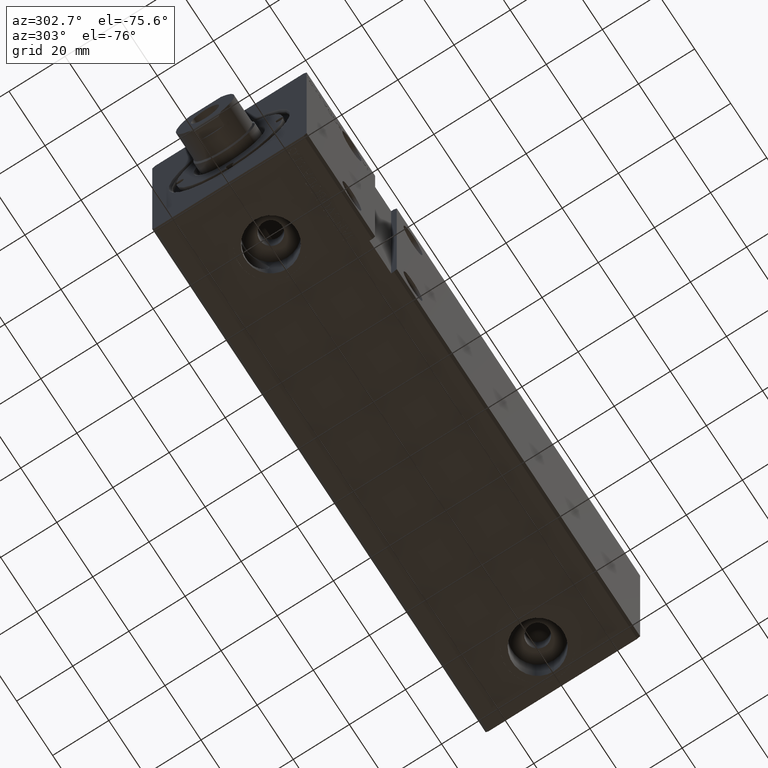
[diagram: clean part render]
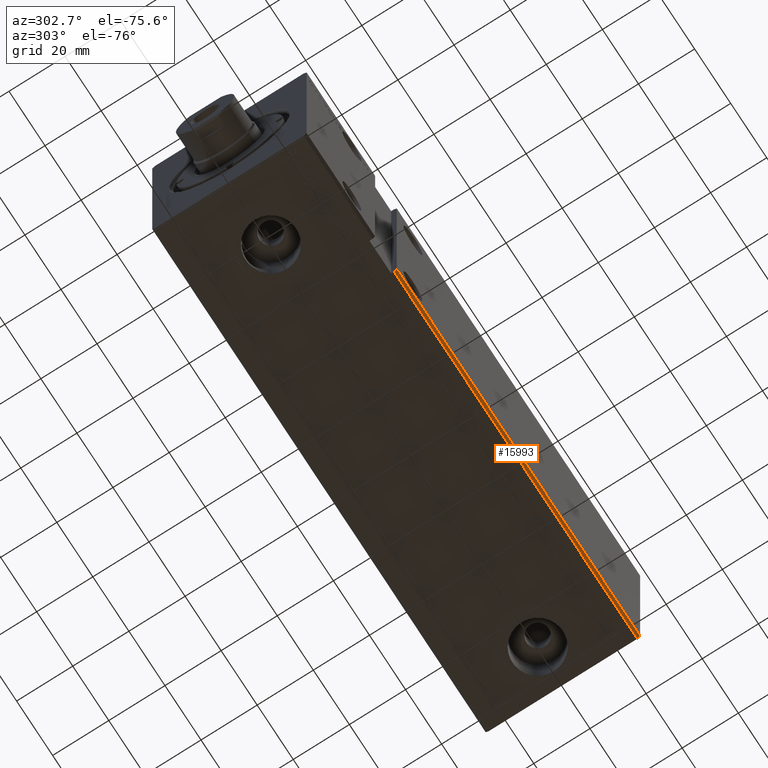
[diagram: same view with one face highlighted and labeled with its STEP entity id]
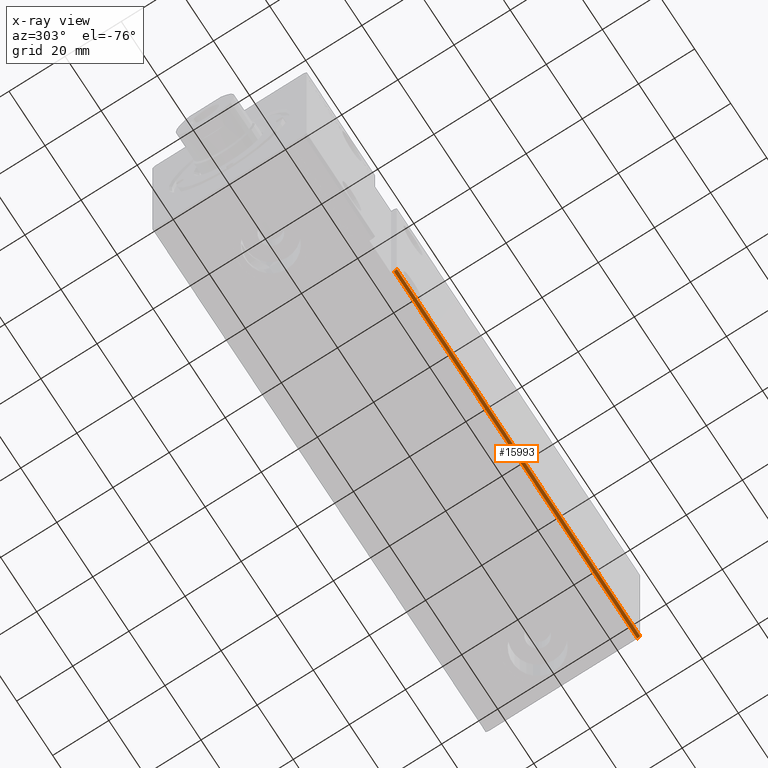
[diagram: x-ray of the same camera — body ghosted, the highlighted face saturated]
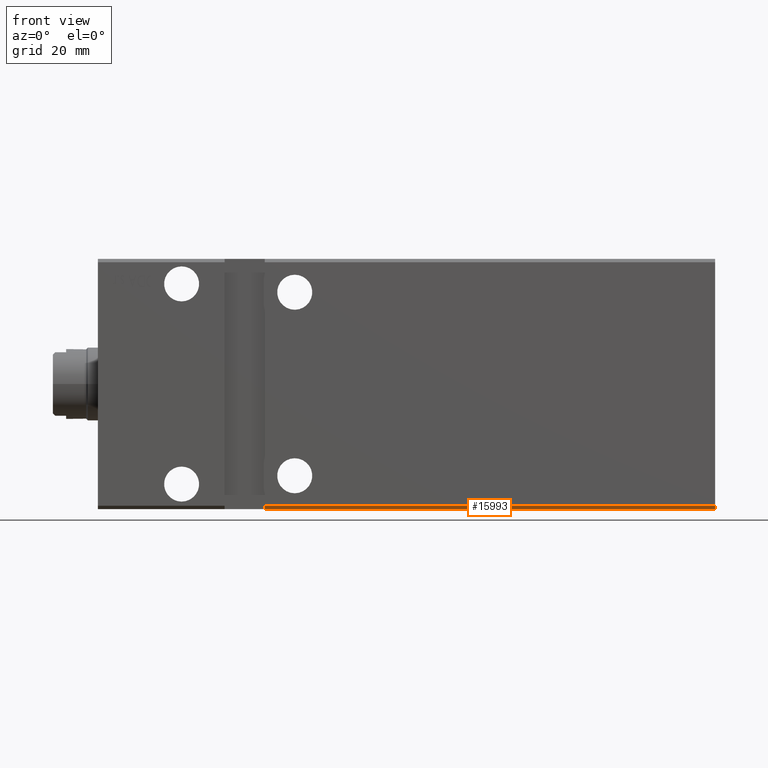
[diagram: same view with one face highlighted and labeled with its STEP entity id]
A machine part, auxiliary view. The second image highlights one B-rep face of the part: STEP entity #15993.
The next image is the same camera in x-ray: the body ghosted, the highlighted face saturated — about 0% of this face is hidden behind the body in this view.
A second angle (front view) of the same face is appended — the face is thin or edge-on in the first view.
In plain terms, the highlighted planar face has unit normal (0, 0.7071, 0.7071).
Its self-contained STEP definition (entity closure, byte-faithful):
#2916 = LINE ( 'NONE', #8900, #4492 ) ;
#3389 = LINE ( 'NONE', #24745, #28019 ) ;
#4492 = VECTOR ( 'NONE', #30283, 1000.000000000000114 ) ;
#4507 = VERTEX_POINT ( 'NONE', #5987 ) ;
#4582 = EDGE_CURVE ( 'NONE', #32809, #4507, #3389, .T. ) ;
#5987 = CARTESIAN_POINT ( 'NONE',  ( 50.00000000000000711, -27.50000000000000000, -36.49999999999997868 ) ) ;
#8103 = DIRECTION ( 'NONE',  ( 0.000000000000000000, 0.7071067811865451302, -0.7071067811865500152 ) ) ;
#8892 = DIRECTION ( 'NONE',  ( -1.000000000000000000, -0.000000000000000000, -0.000000000000000000 ) ) ;
#8900 = CARTESIAN_POINT ( 'NONE',  ( 49.99999999999998579, -27.49999999999998934, -36.50000000000000000 ) ) ;
#9286 = EDGE_CURVE ( 'NONE', #32809, #35479, #10689, .T. ) ;
#10689 = LINE ( 'NONE', #32083, #23025 ) ;
#11698 = CARTESIAN_POINT ( 'NONE',  ( 185.0000000000000000, -26.50000000000000355, -37.49999999999999289 ) ) ;
#12907 = FACE_OUTER_BOUND ( 'NONE', #32518, .T. ) ;
#15514 = VECTOR ( 'NONE', #8892, 1000.000000000000000 ) ;
#15993 = ADVANCED_FACE ( 'NONE', ( #12907 ), #37476, .F. ) ;
#18544 = DIRECTION ( 'NONE',  ( -1.000000000000000000, -0.000000000000000000, -0.000000000000000000 ) ) ;
#18887 = DIRECTION ( 'NONE',  ( 0.000000000000000000, -0.7071067811865451302, 0.7071067811865499042 ) ) ;
#21157 = EDGE_CURVE ( 'NONE', #35479, #30077, #24469, .T. ) ;
#22367 = ORIENTED_EDGE ( 'NONE', *, *, #29328, .T. ) ;
#22900 = CARTESIAN_POINT ( 'NONE',  ( 50.00000000000000711, -26.50000000000000355, -37.49999999999999289 ) ) ;
#23025 = VECTOR ( 'NONE', #8103, 1000.000000000000114 ) ;
#24469 = LINE ( 'NONE', #11698, #15514 ) ;
#24745 = CARTESIAN_POINT ( 'NONE',  ( 185.0000000000000000, -27.50000000000000355, -36.49999999999998579 ) ) ;
#24878 = CARTESIAN_POINT ( 'NONE',  ( 185.0000000000000000, -26.50000000000000355, -37.49999999999999289 ) ) ;
#28019 = VECTOR ( 'NONE', #18544, 1000.000000000000000 ) ;
#28298 = CARTESIAN_POINT ( 'NONE',  ( 185.0000000000000000, -27.50000000000000355, -36.49999999999998579 ) ) ;
#29328 = EDGE_CURVE ( 'NONE', #4507, #30077, #2916, .T. ) ;
#29474 = AXIS2_PLACEMENT_3D ( 'NONE', #28298, #34096, #18887 ) ;
#30077 = VERTEX_POINT ( 'NONE', #22900 ) ;
#30283 = DIRECTION ( 'NONE',  ( 1.308410382236483702E-16, 0.7071067811865451302, -0.7071067811865499042 ) ) ;
#31796 = ORIENTED_EDGE ( 'NONE', *, *, #9286, .F. ) ;
#32083 = CARTESIAN_POINT ( 'NONE',  ( 185.0000000000000000, -27.50000000000000355, -36.49999999999998579 ) ) ;
#32518 = EDGE_LOOP ( 'NONE', ( #38141, #22367, #38462, #31796 ) ) ;
#32809 = VERTEX_POINT ( 'NONE', #39017 ) ;
#34096 = DIRECTION ( 'NONE',  ( -0.000000000000000000, 0.7071067811865499042, 0.7071067811865451302 ) ) ;
#35479 = VERTEX_POINT ( 'NONE', #24878 ) ;
#37476 = PLANE ( 'NONE',  #29474 ) ;
#38141 = ORIENTED_EDGE ( 'NONE', *, *, #4582, .T. ) ;
#38462 = ORIENTED_EDGE ( 'NONE', *, *, #21157, .F. ) ;
#39017 = CARTESIAN_POINT ( 'NONE',  ( 185.0000000000000000, -27.50000000000000355, -36.49999999999998579 ) ) ;